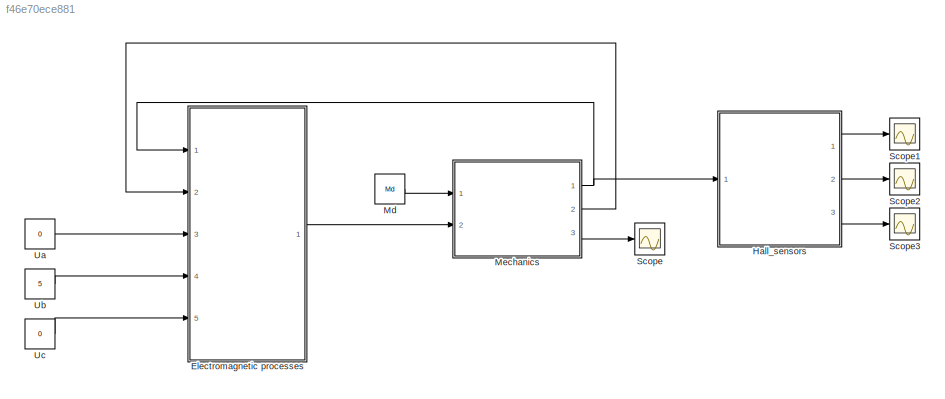
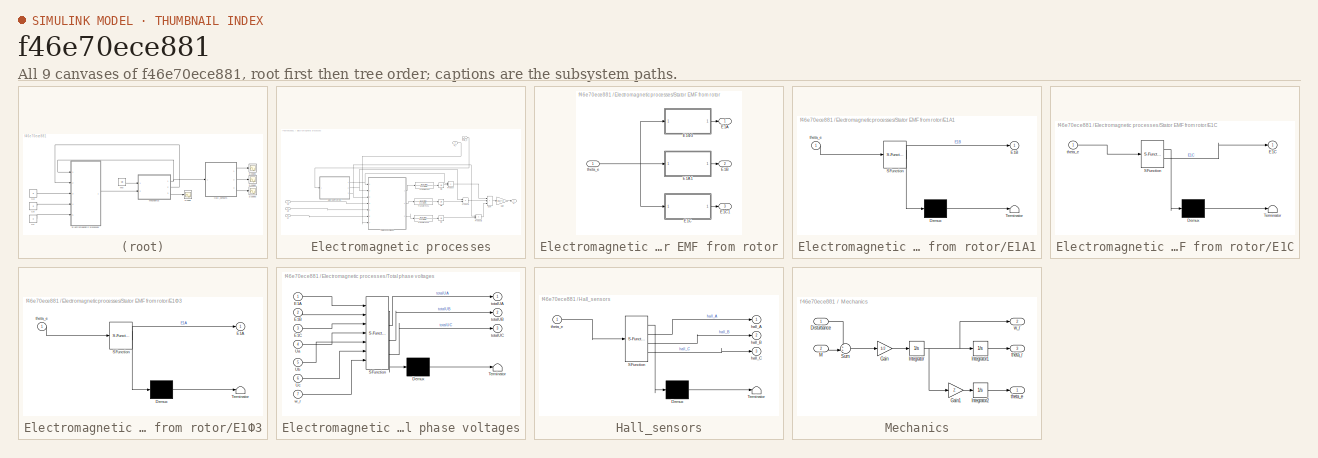
[diagram: thumbnail index - all 9 canvases of the model, root first then tree order]
MODEL slx_f46e70ece881
KIND model
CONFIG AbsTol = auto
CONFIG EnableMultiTasking = off
CONFIG FixedStep = auto
CONFIG MaxStep = 0.01
CONFIG MinStep = auto
CONFIG RelTol = 1e-3
CONFIG SampleTimeConstraint = Unconstrained
CONFIG SolverName = VariableStepAuto
CONFIG StartTime = 0.0
CONFIG StopTime = 2*pi
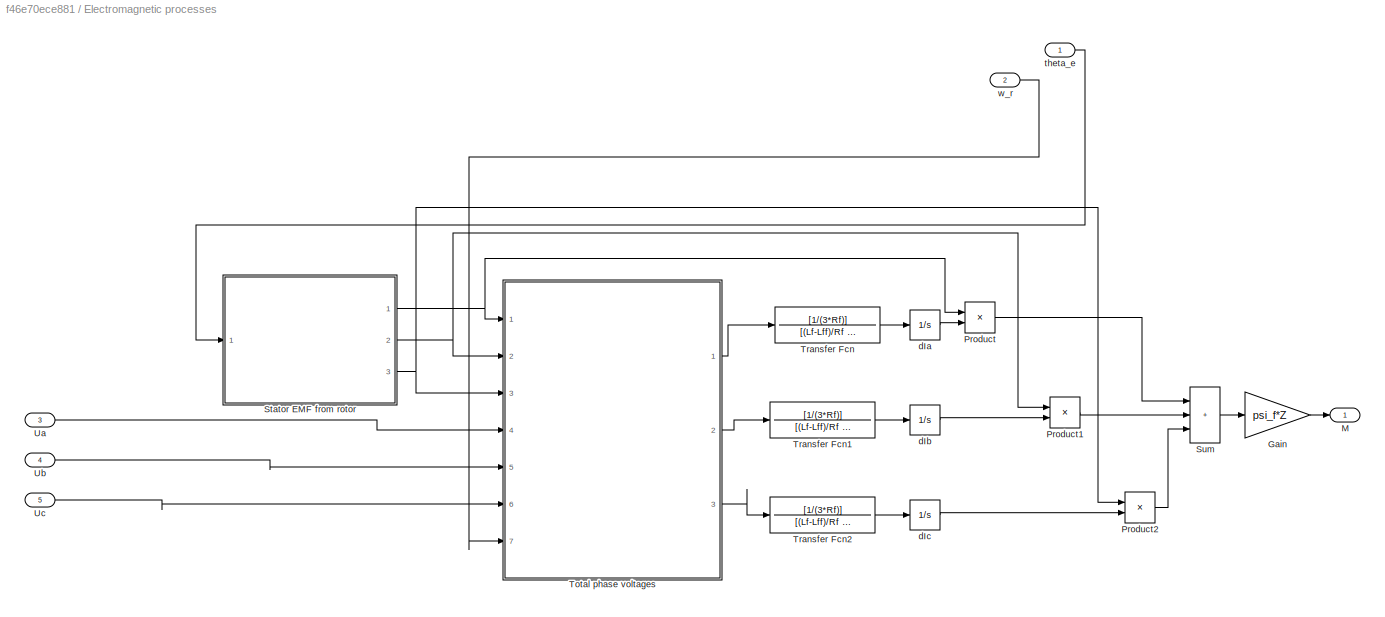
BLOCK [SubSystem] Electromagnetic processes
  Ports = [5, 1]
  RequestExecContextInheritance = off
BLOCK [Gain] Electromagnetic processes/Gain
  Gain = psi_f*Z
BLOCK [Outport] Electromagnetic processes/M
BLOCK [Product] Electromagnetic processes/Product
  Ports = [2, 1]
BLOCK [Product] Electromagnetic processes/Product1
  Ports = [2, 1]
BLOCK [Product] Electromagnetic processes/Product2
  Ports = [2, 1]
BLOCK [SubSystem] Electromagnetic processes/Stator EMF from rotor
  Ports = [1, 3]
  RequestExecContextInheritance = off
BLOCK [Outport] Electromagnetic processes/Stator EMF from rotor/E1A
BLOCK [SubSystem] Electromagnetic processes/Stator EMF from rotor/E1A1
  ErrorFcn = Stateflow.Translate.translate
  PermitHierarchicalResolution = ExplicitOnly
  Ports = [1, 1]
  RequestExecContextInheritance = off
  SFBlockType = MATLAB Function
  TreatAsAtomicUnit = on
BLOCK [Demux] Electromagnetic processes/Stator EMF from rotor/E1A1/ Demux 
  Outputs = 1
  Ports = [1, 1]
BLOCK [S-Function] Electromagnetic processes/Stator EMF from rotor/E1A1/ SFunction 
  EnableBusSupport = on
  FunctionName = sf_sfun
  PortCounts = [1 2]
  Ports = [1, 2]
  SFcnIsStateOwnerBlock = off
  SFunctionDeploymentMode = off
  Tag = Stateflow S-Function 1
BLOCK [Terminator] Electromagnetic processes/Stator EMF from rotor/E1A1/ Terminator 
BLOCK [Outport] Electromagnetic processes/Stator EMF from rotor/E1A1/E1B
BLOCK [Inport] Electromagnetic processes/Stator EMF from rotor/E1A1/theta_e 
BLOCK [Outport] Electromagnetic processes/Stator EMF from rotor/E1B
  Port = 2
BLOCK [SubSystem] Electromagnetic processes/Stator EMF from rotor/E1C
  ErrorFcn = Stateflow.Translate.translate
  PermitHierarchicalResolution = ExplicitOnly
  Ports = [1, 1]
  RequestExecContextInheritance = off
  SFBlockType = MATLAB Function
  TreatAsAtomicUnit = on
BLOCK [Demux] Electromagnetic processes/Stator EMF from rotor/E1C/ Demux 
  Outputs = 1
  Ports = [1, 1]
BLOCK [S-Function] Electromagnetic processes/Stator EMF from rotor/E1C/ SFunction 
  EnableBusSupport = on
  FunctionName = sf_sfun
  PortCounts = [1 2]
  Ports = [1, 2]
  SFcnIsStateOwnerBlock = off
  SFunctionDeploymentMode = off
  Tag = Stateflow S-Function 3
BLOCK [Terminator] Electromagnetic processes/Stator EMF from rotor/E1C/ Terminator 
BLOCK [Outport] Electromagnetic processes/Stator EMF from rotor/E1C/E1C
BLOCK [Inport] Electromagnetic processes/Stator EMF from rotor/E1C/theta_e
BLOCK [Outport] Electromagnetic processes/Stator EMF from rotor/E1C1
  Port = 3
BLOCK [SubSystem] Electromagnetic processes/Stator EMF from rotor/E1Ф3
  ErrorFcn = Stateflow.Translate.translate
  PermitHierarchicalResolution = ExplicitOnly
  Ports = [1, 1]
  RequestExecContextInheritance = off
  SFBlockType = MATLAB Function
  TreatAsAtomicUnit = on
BLOCK [Demux] Electromagnetic processes/Stator EMF from rotor/E1Ф3/ Demux 
  Outputs = 1
  Ports = [1, 1]
BLOCK [S-Function] Electromagnetic processes/Stator EMF from rotor/E1Ф3/ SFunction 
  EnableBusSupport = on
  FunctionName = sf_sfun
  PortCounts = [1 2]
  Ports = [1, 2]
  SFcnIsStateOwnerBlock = off
  SFunctionDeploymentMode = off
  Tag = Stateflow S-Function 2
BLOCK [Terminator] Electromagnetic processes/Stator EMF from rotor/E1Ф3/ Terminator 
BLOCK [Outport] Electromagnetic processes/Stator EMF from rotor/E1Ф3/E1A
BLOCK [Inport] Electromagnetic processes/Stator EMF from rotor/E1Ф3/theta_e 
BLOCK [Inport] Electromagnetic processes/Stator EMF from rotor/theta_e
BLOCK [Sum] Electromagnetic processes/Sum
  IconShape = rectangular
  Inputs = +++
  Ports = [3, 1]
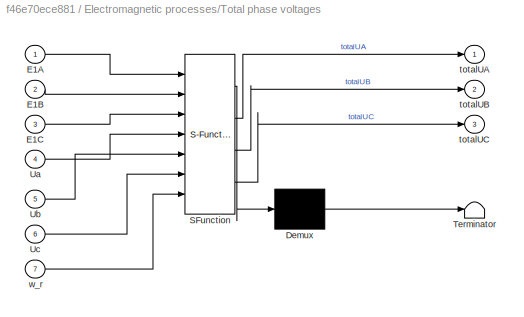
BLOCK [SubSystem] Electromagnetic processes/Total phase voltages
  ErrorFcn = Stateflow.Translate.translate
  PermitHierarchicalResolution = ExplicitOnly
  Ports = [7, 3]
  RequestExecContextInheritance = off
  SFBlockType = MATLAB Function
  TreatAsAtomicUnit = on
BLOCK [Demux] Electromagnetic processes/Total phase voltages/ Demux 
  Outputs = 1
  Ports = [1, 1]
BLOCK [S-Function] Electromagnetic processes/Total phase voltages/ SFunction 
  EnableBusSupport = on
  FunctionName = sf_sfun
  Parameters = Z,psi_f
  PortCounts = [7 4]
  Ports = [7, 4]
  SFcnIsStateOwnerBlock = off
  SFunctionDeploymentMode = off
  Tag = Stateflow S-Function 5
BLOCK [Terminator] Electromagnetic processes/Total phase voltages/ Terminator 
BLOCK [Inport] Electromagnetic processes/Total phase voltages/E1A
BLOCK [Inport] Electromagnetic processes/Total phase voltages/E1B
  Port = 2
BLOCK [Inport] Electromagnetic processes/Total phase voltages/E1C
  Port = 3
BLOCK [Inport] Electromagnetic processes/Total phase voltages/Ua
  Port = 4
BLOCK [Inport] Electromagnetic processes/Total phase voltages/Ub
  Port = 5
BLOCK [Inport] Electromagnetic processes/Total phase voltages/Uc
  Port = 6
BLOCK [Outport] Electromagnetic processes/Total phase voltages/totalUA
BLOCK [Outport] Electromagnetic processes/Total phase voltages/totalUB
  Port = 2
BLOCK [Outport] Electromagnetic processes/Total phase voltages/totalUC
  Port = 3
BLOCK [Inport] Electromagnetic processes/Total phase voltages/w_r
  Port = 7
BLOCK [TransferFcn] Electromagnetic processes/Transfer Fcn
  Denominator = [(Lf-Lff)/Rf 1]
  Numerator = [1/(3*Rf)]
BLOCK [TransferFcn] Electromagnetic processes/Transfer Fcn1
  Denominator = [(Lf-Lff)/Rf 1]
  Numerator = [1/(3*Rf)]
BLOCK [TransferFcn] Electromagnetic processes/Transfer Fcn2
  Denominator = [(Lf-Lff)/Rf 1]
  Numerator = [1/(3*Rf)]
BLOCK [Inport] Electromagnetic processes/Ua
  Port = 3
BLOCK [Inport] Electromagnetic processes/Ub
  Port = 4
BLOCK [Inport] Electromagnetic processes/Uc
  Port = 5
BLOCK [Integrator] Electromagnetic processes/dIa
  Ports = [1, 1]
BLOCK [Integrator] Electromagnetic processes/dIb
  Ports = [1, 1]
BLOCK [Integrator] Electromagnetic processes/dIc
  Ports = [1, 1]
BLOCK [Inport] Electromagnetic processes/theta_e
BLOCK [Inport] Electromagnetic processes/w_r
  Port = 2
BLOCK [SubSystem] Hall_sensors
  ErrorFcn = Stateflow.Translate.translate
  PermitHierarchicalResolution = ExplicitOnly
  Ports = [1, 3]
  RequestExecContextInheritance = off
  SFBlockType = MATLAB Function
  TreatAsAtomicUnit = on
BLOCK [Demux] Hall_sensors/ Demux 
  Outputs = 1
  Ports = [1, 1]
BLOCK [S-Function] Hall_sensors/ SFunction 
  EnableBusSupport = on
  FunctionName = sf_sfun
  PortCounts = [1 4]
  Ports = [1, 4]
  SFcnIsStateOwnerBlock = off
  SFunctionDeploymentMode = off
  Tag = Stateflow S-Function 4
BLOCK [Terminator] Hall_sensors/ Terminator 
BLOCK [Outport] Hall_sensors/hall_A
BLOCK [Outport] Hall_sensors/hall_B
  Port = 2
BLOCK [Outport] Hall_sensors/hall_C
  Port = 3
BLOCK [Inport] Hall_sensors/theta_e
BLOCK [Constant] Md
  Value = Md
BLOCK [SubSystem] Mechanics
  Ports = [2, 3]
  RequestExecContextInheritance = off
BLOCK [Inport] Mechanics/Disturbance
BLOCK [Gain] Mechanics/Gain
  Gain = 1/J
BLOCK [Gain] Mechanics/Gain1
  Gain = Z
BLOCK [Integrator] Mechanics/Integrator
  Ports = [1, 1]
BLOCK [Integrator] Mechanics/Integrator1
  Ports = [1, 1]
BLOCK [Integrator] Mechanics/Integrator2
  Ports = [1, 1]
BLOCK [Inport] Mechanics/M
  Port = 2
BLOCK [Sum] Mechanics/Sum
  Inputs = ++|
  Ports = [2, 1]
BLOCK [Outport] Mechanics/theta_e
BLOCK [Outport] Mechanics/theta_r
  Port = 3
BLOCK [Outport] Mechanics/w_r
  Port = 2
BLOCK [Scope] Scope
  Floating = off
  NumInputPorts = 1
  Ports = [1]
  ScopeSpecificationString = Simulink.scopes.TimeScopeBlockCfg('CurrentConfiguration', extmgr.ConfigurationSet(extmgr.Configuration('Core','General UI',true),extmgr.Configuration('Core','Source UI',true),extmgr.Configuration('Sources','WiredSimulink',true),extmgr.Configuration('Visuals','Time Domain',true,'SerializedDisplays',{struct('MinYLimReal','-0.38888','MaxYLimReal','3.49992','YLabelReal','','MinYLimMag','0.00000','MaxY...<+1331ch>
BLOCK [Scope] Scope1
  Floating = off
  NumInputPorts = 1
  Ports = [1]
  ScopeSpecificationString = Simulink.scopes.TimeScopeBlockCfg('CurrentConfiguration', extmgr.ConfigurationSet(extmgr.Configuration('Core','General UI',true),extmgr.Configuration('Core','Source UI',true),extmgr.Configuration('Sources','WiredSimulink',true,'DataLoggingVariableName','ScopeData1'),extmgr.Configuration('Visuals','Time Domain',true),extmgr.Configuration('Tools','Plot Navigation',true),extmgr.Configuration('Tools',...<+40ch>
BLOCK [Scope] Scope2
  Floating = off
  NumInputPorts = 1
  Ports = [1]
  ScopeSpecificationString = Simulink.scopes.TimeScopeBlockCfg('CurrentConfiguration', extmgr.ConfigurationSet(extmgr.Configuration('Core','General UI',true),extmgr.Configuration('Core','Source UI',true),extmgr.Configuration('Sources','WiredSimulink',true,'DataLoggingVariableName','ScopeData2'),extmgr.Configuration('Visuals','Time Domain',true),extmgr.Configuration('Tools','Plot Navigation',true),extmgr.Configuration('Tools',...<+40ch>
BLOCK [Scope] Scope3
  Floating = off
  NumInputPorts = 1
  Ports = [1]
  ScopeSpecificationString = Simulink.scopes.TimeScopeBlockCfg('CurrentConfiguration', extmgr.ConfigurationSet(extmgr.Configuration('Core','General UI',true),extmgr.Configuration('Core','Source UI',true),extmgr.Configuration('Sources','WiredSimulink',true,'DataLoggingVariableName','ScopeData3'),extmgr.Configuration('Visuals','Time Domain',true,'SerializedDisplays',{struct('MinYLimReal','-0.125','MaxYLimReal','1.125','YLabelRe...<+1366ch>
BLOCK [Constant] Ua
  Value = 0
BLOCK [Constant] Ub
  Value = 5
BLOCK [Constant] Uc
  Value = 0
LINE Electromagnetic processes/Gain:1 -> Electromagnetic processes/M:1
LINE Electromagnetic processes/Product1:1 -> Electromagnetic processes/Sum:2
LINE Electromagnetic processes/Product2:1 -> Electromagnetic processes/Sum:3
LINE Electromagnetic processes/Product:1 -> Electromagnetic processes/Sum:1
LINE Electromagnetic processes/Stator EMF from rotor/E1A1:1 -> Electromagnetic processes/Stator EMF from rotor/E1B:1
LINE Electromagnetic processes/Stator EMF from rotor/E1C:1 -> Electromagnetic processes/Stator EMF from rotor/E1C1:1
LINE Electromagnetic processes/Stator EMF from rotor/E1Ф3:1 -> Electromagnetic processes/Stator EMF from rotor/E1A:1
NET Electromagnetic processes/Stator EMF from rotor/theta_e:1 -> Electromagnetic processes/Stator EMF from rotor/E1A1:1, Electromagnetic processes/Stator EMF from rotor/E1C:1, Electromagnetic processes/Stator EMF from rotor/E1Ф3:1
NET Electromagnetic processes/Stator EMF from rotor:1 -> Electromagnetic processes/Product:1, Electromagnetic processes/Total phase voltages:1
NET Electromagnetic processes/Stator EMF from rotor:2 -> Electromagnetic processes/Product1:1, Electromagnetic processes/Total phase voltages:2
NET Electromagnetic processes/Stator EMF from rotor:3 -> Electromagnetic processes/Product2:1, Electromagnetic processes/Total phase voltages:3
LINE Electromagnetic processes/Sum:1 -> Electromagnetic processes/Gain:1
LINE Electromagnetic processes/Total phase voltages:1 -> Electromagnetic processes/Transfer Fcn:1
LINE Electromagnetic processes/Total phase voltages:2 -> Electromagnetic processes/Transfer Fcn1:1
LINE Electromagnetic processes/Total phase voltages:3 -> Electromagnetic processes/Transfer Fcn2:1
LINE Electromagnetic processes/Transfer Fcn1:1 -> Electromagnetic processes/dIb:1
LINE Electromagnetic processes/Transfer Fcn2:1 -> Electromagnetic processes/dIc:1
LINE Electromagnetic processes/Transfer Fcn:1 -> Electromagnetic processes/dIa:1
LINE Electromagnetic processes/Ua:1 -> Electromagnetic processes/Total phase voltages:4
LINE Electromagnetic processes/Ub:1 -> Electromagnetic processes/Total phase voltages:5
LINE Electromagnetic processes/Uc:1 -> Electromagnetic processes/Total phase voltages:6
LINE Electromagnetic processes/dIa:1 -> Electromagnetic processes/Product:2
LINE Electromagnetic processes/dIb:1 -> Electromagnetic processes/Product1:2
LINE Electromagnetic processes/dIc:1 -> Electromagnetic processes/Product2:2
LINE Electromagnetic processes/theta_e:1 -> Electromagnetic processes/Stator EMF from rotor:1
LINE Electromagnetic processes/w_r:1 -> Electromagnetic processes/Total phase voltages:7
LINE Electromagnetic processes:1 -> Mechanics:2
LINE Hall_sensors:1 -> Scope1:1
LINE Hall_sensors:2 -> Scope2:1
LINE Hall_sensors:3 -> Scope3:1
LINE Md:1 -> Mechanics:1
LINE Mechanics/Disturbance:1 -> Mechanics/Sum:1
LINE Mechanics/Gain1:1 -> Mechanics/Integrator2:1
LINE Mechanics/Gain:1 -> Mechanics/Integrator:1
LINE Mechanics/Integrator1:1 -> Mechanics/theta_r:1
LINE Mechanics/Integrator2:1 -> Mechanics/theta_e:1
NET Mechanics/Integrator:1 -> Mechanics/Gain1:1, Mechanics/Integrator1:1, Mechanics/w_r:1
LINE Mechanics/M:1 -> Mechanics/Sum:2
LINE Mechanics/Sum:1 -> Mechanics/Gain:1
NET Mechanics:1 -> Electromagnetic processes:1, Hall_sensors:1
LINE Mechanics:2 -> Electromagnetic processes:2
LINE Mechanics:3 -> Scope:1
LINE Ua:1 -> Electromagnetic processes:3
LINE Ub:1 -> Electromagnetic processes:4
LINE Uc:1 -> Electromagnetic processes:5
note: NET lines group one-source signal fan-out (src -> all destinations, sorted); 1:1 wires keep LINE
CHART Electromagnetic processes/Stator EMF from rotor/E1A1 states=1 transitions=1
  STATE_LABEL 'eML_blk_kernel()'
  STATE_LABEL 'SCRIPT:\nfunction E1B = fcn(theta_e)\ntheta_e = mod(abs(theta_e), 2*pi);\nif 0<=theta_e && theta_e<=pi/2\n    E1B=1;\nelseif pi/2<theta_e && theta_e<=5*pi/6\n    E1B = -6/pi*(theta_e-4*pi/6);\nelseif 5*pi/6<theta_e && theta_e<=9*pi/6\n    E1B = -1;\nelseif 9*pi/6<theta_e && theta_e<=11*pi/6\n    E1B = 6/pi*(theta_e-10*pi/6);\nelse\n    E1B = 1;\nend\n'
CHART Electromagnetic processes/Stator EMF from rotor/E1Ф3 states=1 transitions=1
  STATE_LABEL 'eML_blk_kernel()'
  STATE_LABEL 'SCRIPT:\nfunction E1A = fcn(theta_e)\ntheta_e = mod(abs(theta_e), 2*pi);\nif pi/6<=theta_e && theta_e<=5*pi/6\n    E1A=-1;\nelseif 7*pi/6<=theta_e && theta_e<=11*pi/6\n    E1A=1;\nelseif 0<=theta_e && theta_e<pi/6\n    E1A=-6/pi*theta_e;\nelseif 5*pi/6<theta_e && theta_e<7*pi/6\n    E1A=6/pi*(theta_e - pi);\nelse\n    E1A = -6/pi*(theta_e - 2*pi);\nend\n'
CHART Electromagnetic processes/Stator EMF from rotor/E1C states=1 transitions=1
  STATE_LABEL 'eML_blk_kernel()'
  STATE_LABEL 'SCRIPT:\nfunction E1C = fcn(theta_e)\ntheta_e = mod(abs(theta_e), 2*pi);\nif pi/2<=theta_e && theta_e<=7*pi/6\n    E1C=1;\nelseif pi/6<theta_e && theta_e<pi/2\n    E1C=6/pi*(theta_e - 2*pi/6);\nelseif 7*pi/6<theta_e && theta_e<9*pi/6\n    E1C=-6/pi*(theta_e-8*pi/6);\nelse\n    E1C = -1;\nend\n'
CHART Hall_sensors states=1 transitions=1
  STATE_LABEL 'eML_blk_kernel()'
  STATE_LABEL 'SCRIPT:\nfunction [hall_A, hall_B, hall_C] = fcn(theta_e)\ntheta_e = mod(abs(theta_e), 2*pi);\nif pi/6<=theta_e && theta_e<=pi/2\n    hall_A = 1;\n    hall_B = 1;\n    hall_C = 0;\nelseif pi/2<theta_e && theta_e<=5*pi/6\n    hall_A = 0;\n    hall_B = 1;\n    hall_C = 0;\nelseif 5*pi/6<theta_e && theta_e<=7*pi/6\n    hall_A = 0;\n    hall_B = 1;\n    hall_C = 1; \nelseif 7*pi/6<theta_e && theta_e<=3*pi/2\n    hall...<+190ch>'
CHART Electromagnetic processes/Total phase voltages states=1 transitions=1
  STATE_LABEL 'eML_blk_kernel()'
  STATE_LABEL 'SCRIPT:\nfunction [totalUA, totalUB, totalUC] = fcn(E1A, E1B, E1C, Ua, Ub, Uc, w_r, psi_f, Z)\ntotalUA=2*Ua-Ub-Uc+psi_f*Z*w_r*(E1B+E1C-2*E1A);\ntotalUB=2*Ub-Ua-Uc+psi_f*Z*w_r*(E1C+E1A-2*E1B);\ntotalUC=2*Uc-Ua-Ub+psi_f*Z*w_r*(E1A+E1B-2*E1C);\n\n'
CHART  states=0 transitions=0
CHART  states=0 transitions=0
CHART  states=0 transitions=0
CHART  states=0 transitions=0
CHART  states=0 transitions=0
